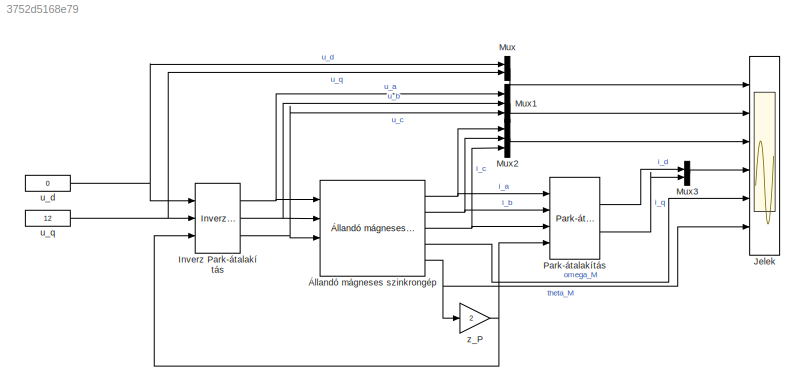
MODEL slx_3752d5168e79
KIND model
CONFIG InitFcn = % Modellparaméterek\nR = 440e-3;\nL_dd = 155e-6;\nL_qq = 188e-6;\n\nPsi_PM = 24.5e-3;\nz_P = 2;\n\nJ = 200e-7;\nB = 5e-5;\n\n\n% Rendszerparaméterek\nK_d = 1/R;\ntau_d = L_dd/R;\nK_q = 1/R;\ntau_q = L_qq/R;\n\nK_M = 3/2*z_P*Psi_PM/B;\ntau_M = J/B;\n\n\n% Szabályzóhangolás\n% Másodrendű zárt körként hangolva\n\n% D-irányú áramkör\n% i_dREF (= 0 A) -> u_d\nxi_CL_d = 1;\ntau_CL_d = tau_d/10;\n\nK_PI_d_MRZK = (2*xi_CL_d*tau_d - ta...<+469ch>
BLOCK [Reference] Inverz Park-átalakítás  REF=RI_MK/Inverz Park-átalakítás
  Ports = [3, 3]
  SourceBlock = RI_MK/Inverz Park-átalakítás
  SourceType = SubSystem
BLOCK [Scope] Jelek
  DataFormat = StructureWithTime
  Floating = off
  LegendLocations = 0.82933     0.92245      0.1216     0.03842\n0.82933     0.74671      0.1216    0.055141\n0.83413     0.58876      0.1168    0.055141\n0.83413     0.44753      0.1168     0.03842\n0.78133      0.3063      0.1696      0.0217\n0.79573     0.14835      0.1552      0.0217
  LimitDataPoints = off
  NumInputPorts = 6
  Ports = [6]
  SampleTime = 0
  ShowLegends = on
  YMax = 5~5~5~5~5~5
  YMin = -5~-5~-5~-5~-5~-5
  ZoomMode = yonly
BLOCK [Mux] Mux
  DisplayOption = bar
  Inputs = 2
  Ports = [2, 1]
BLOCK [Mux] Mux1
  DisplayOption = bar
  Inputs = 3
  Ports = [3, 1]
BLOCK [Mux] Mux2
  DisplayOption = bar
  Inputs = 3
  Ports = [3, 1]
BLOCK [Mux] Mux3
  DisplayOption = bar
  Inputs = 2
  Ports = [2, 1]
BLOCK [Reference] Park-átalakítás  REF=RI_MK/Park-átalakítás
  Ports = [4, 2]
  SourceBlock = RI_MK/Park-átalakítás
  SourceType = SubSystem
BLOCK [Constant] u_d
  Value = 0
BLOCK [Constant] u_q
  Value = 12
BLOCK [Gain] z_P
  Gain = 2
  OutDataTypeStr = Inherit: Inherit via internal rule
  ParamDataTypeStr = Inherit: Inherit via internal rule
  SaturateOnIntegerOverflow = off
BLOCK [Reference] Állandó mágneses szinkrongép  REF=RI_MK/Állandó mágneses szinkrongép
  B = B
  J = J
  L_dd = L_dd
  L_qq = L_qq
  Ports = [4, 5]
  Psi_PM = Psi_PM
  R = R
  SourceBlock = RI_MK/Állandó mágneses szinkrongép
  SourceType = Állandó mágneses szinkrongép
  i_d0 = 0
  i_q0 = 0
  omega_M0 = 0
  theta_M0 = 0
  z_P = z_P
NET Inverz Park-átalakítás:1 -> Mux1:1, Állandó mágneses szinkrongép:1
NET Inverz Park-átalakítás:2 -> Mux1:2, Állandó mágneses szinkrongép:2
NET Inverz Park-átalakítás:3 -> Mux1:3, Állandó mágneses szinkrongép:3
LINE Mux1:1 -> Jelek:2
LINE Mux2:1 -> Jelek:3
LINE Mux3:1 -> Jelek:4
LINE Mux:1 -> Jelek:1
LINE Park-átalakítás:1 -> Mux3:1
LINE Park-átalakítás:2 -> Mux3:2
NET u_d:1 -> Inverz Park-átalakítás:1, Mux:1
NET u_q:1 -> Inverz Park-átalakítás:2, Mux:2
NET z_P:1 -> Inverz Park-átalakítás:3, Park-átalakítás:4
NET Állandó mágneses szinkrongép:1 -> Mux2:1, Park-átalakítás:1
NET Állandó mágneses szinkrongép:2 -> Mux2:2, Park-átalakítás:2
NET Állandó mágneses szinkrongép:3 -> Mux2:3, Park-átalakítás:3
LINE Állandó mágneses szinkrongép:4 -> Jelek:5
NET Állandó mágneses szinkrongép:5 -> Jelek:6, z_P:1
note: NET lines group one-source signal fan-out (src -> all destinations, sorted); 1:1 wires keep LINE
